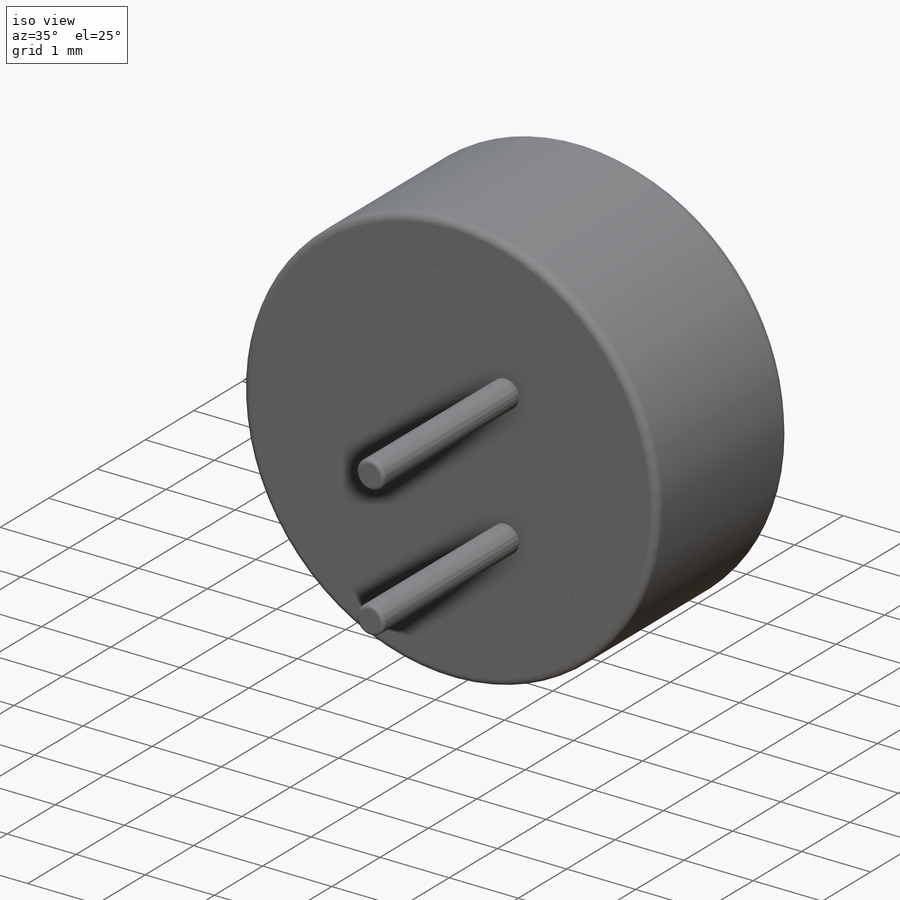
[diagram: iso view]
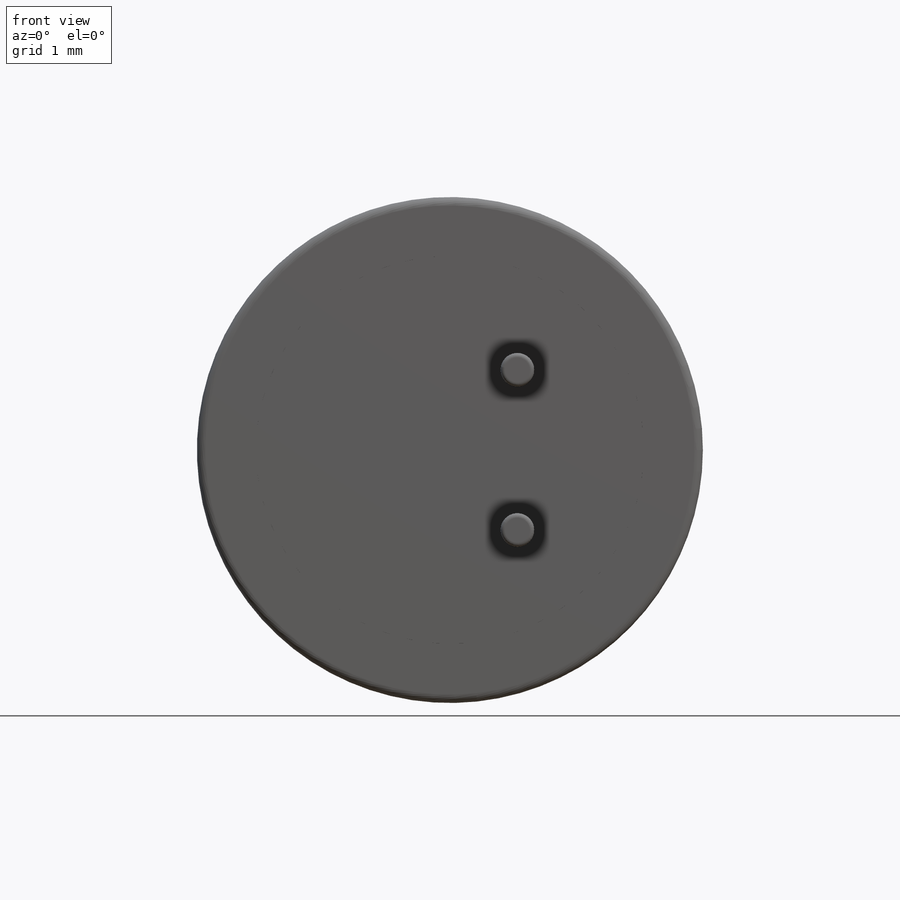
[diagram: front view]
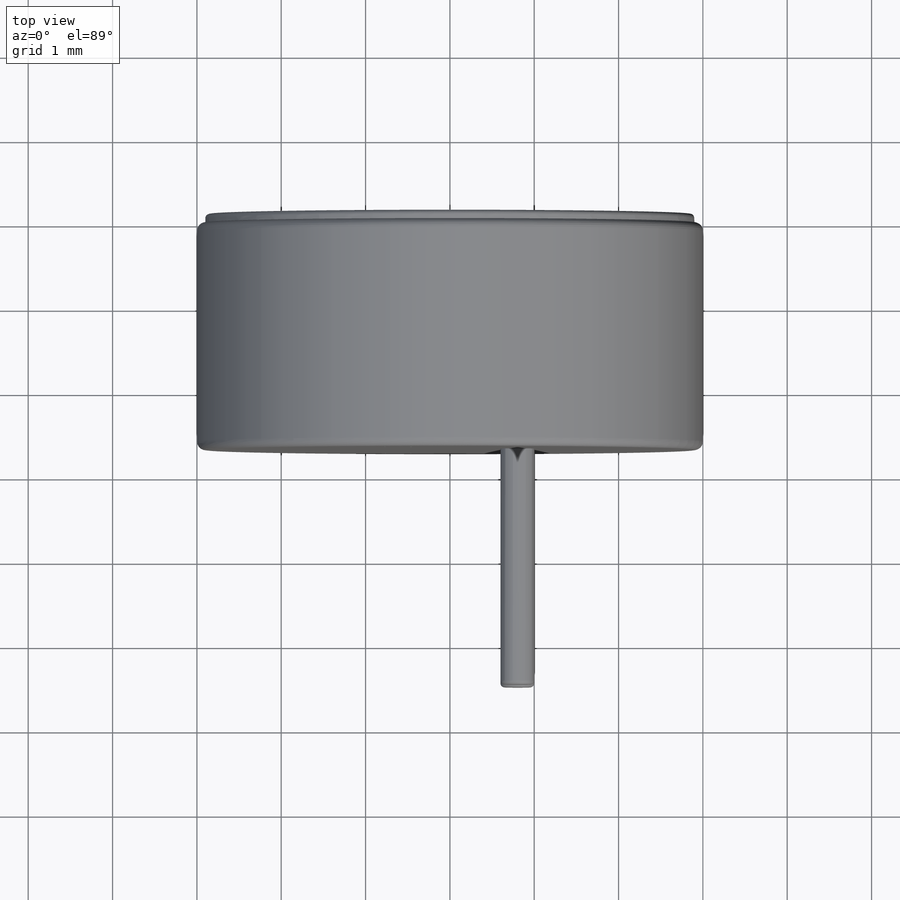
[diagram: top view]
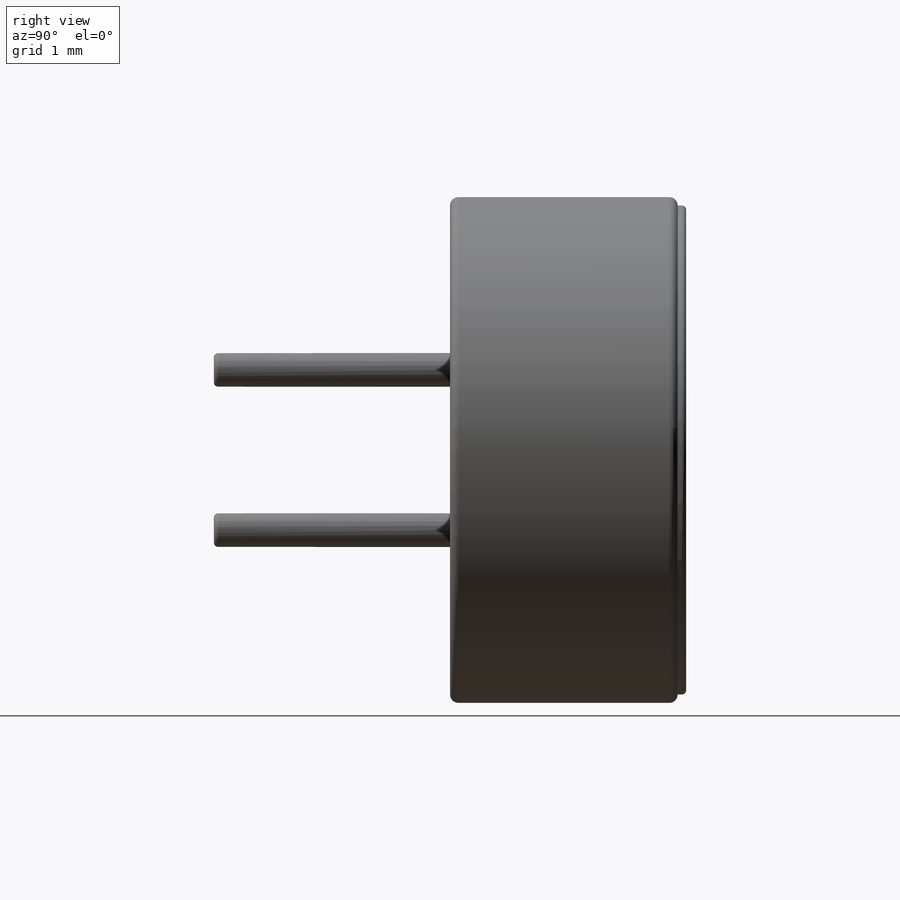
[diagram: right view]
SOLIDWORKS PART (.sldprt)
format: sldprt  version: not decoded by parser v0  size: 276,992 bytes
history: native  units: mm
features: sketch x5, extrude x4, fillet x4, material x1, cut_extrude x1 (+13 scaffold rows collapsed)
feature tree (28):
  scaffold x13  (default folders/planes/origin — collapsed)
  material  "Material <not specified>"
  sketch  "Sketch1"  dims[D1=6.0mm]
  extrude  "Boss-Extrude1"  Depth=2.7mm
  sketch  "Sketch3"  dims[D1=0.4mm D2=0.8mm D3=0.95mm]
  extrude  "Boss-Extrude2"  Depth=2.8mm
  fillet  "Fillet1"  Radius=0.1mm
  sketch  "Sketch4"
  extrude  "Boss-Extrude3"  Depth=0.1mm
  fillet  "Fillet2"  Radius=0.05mm
  sketch  "Sketch6"  dims[D1=4.6mm]
  cut_extrude  "Cut-Extrude1"  Depth=0.1mm
  sketch  "Sketch7"
  extrude  "Boss-Extrude6"  Depth=0.1mm
  fillet  "Fillet3"  Radius=0.05mm
  fillet  "Fillet4"  Radius=0.05mm
decode coverage: 12 of 14 modeling features carry decoded parameters
note: suppression state not decoded; provenance and decode notes live in map.json
